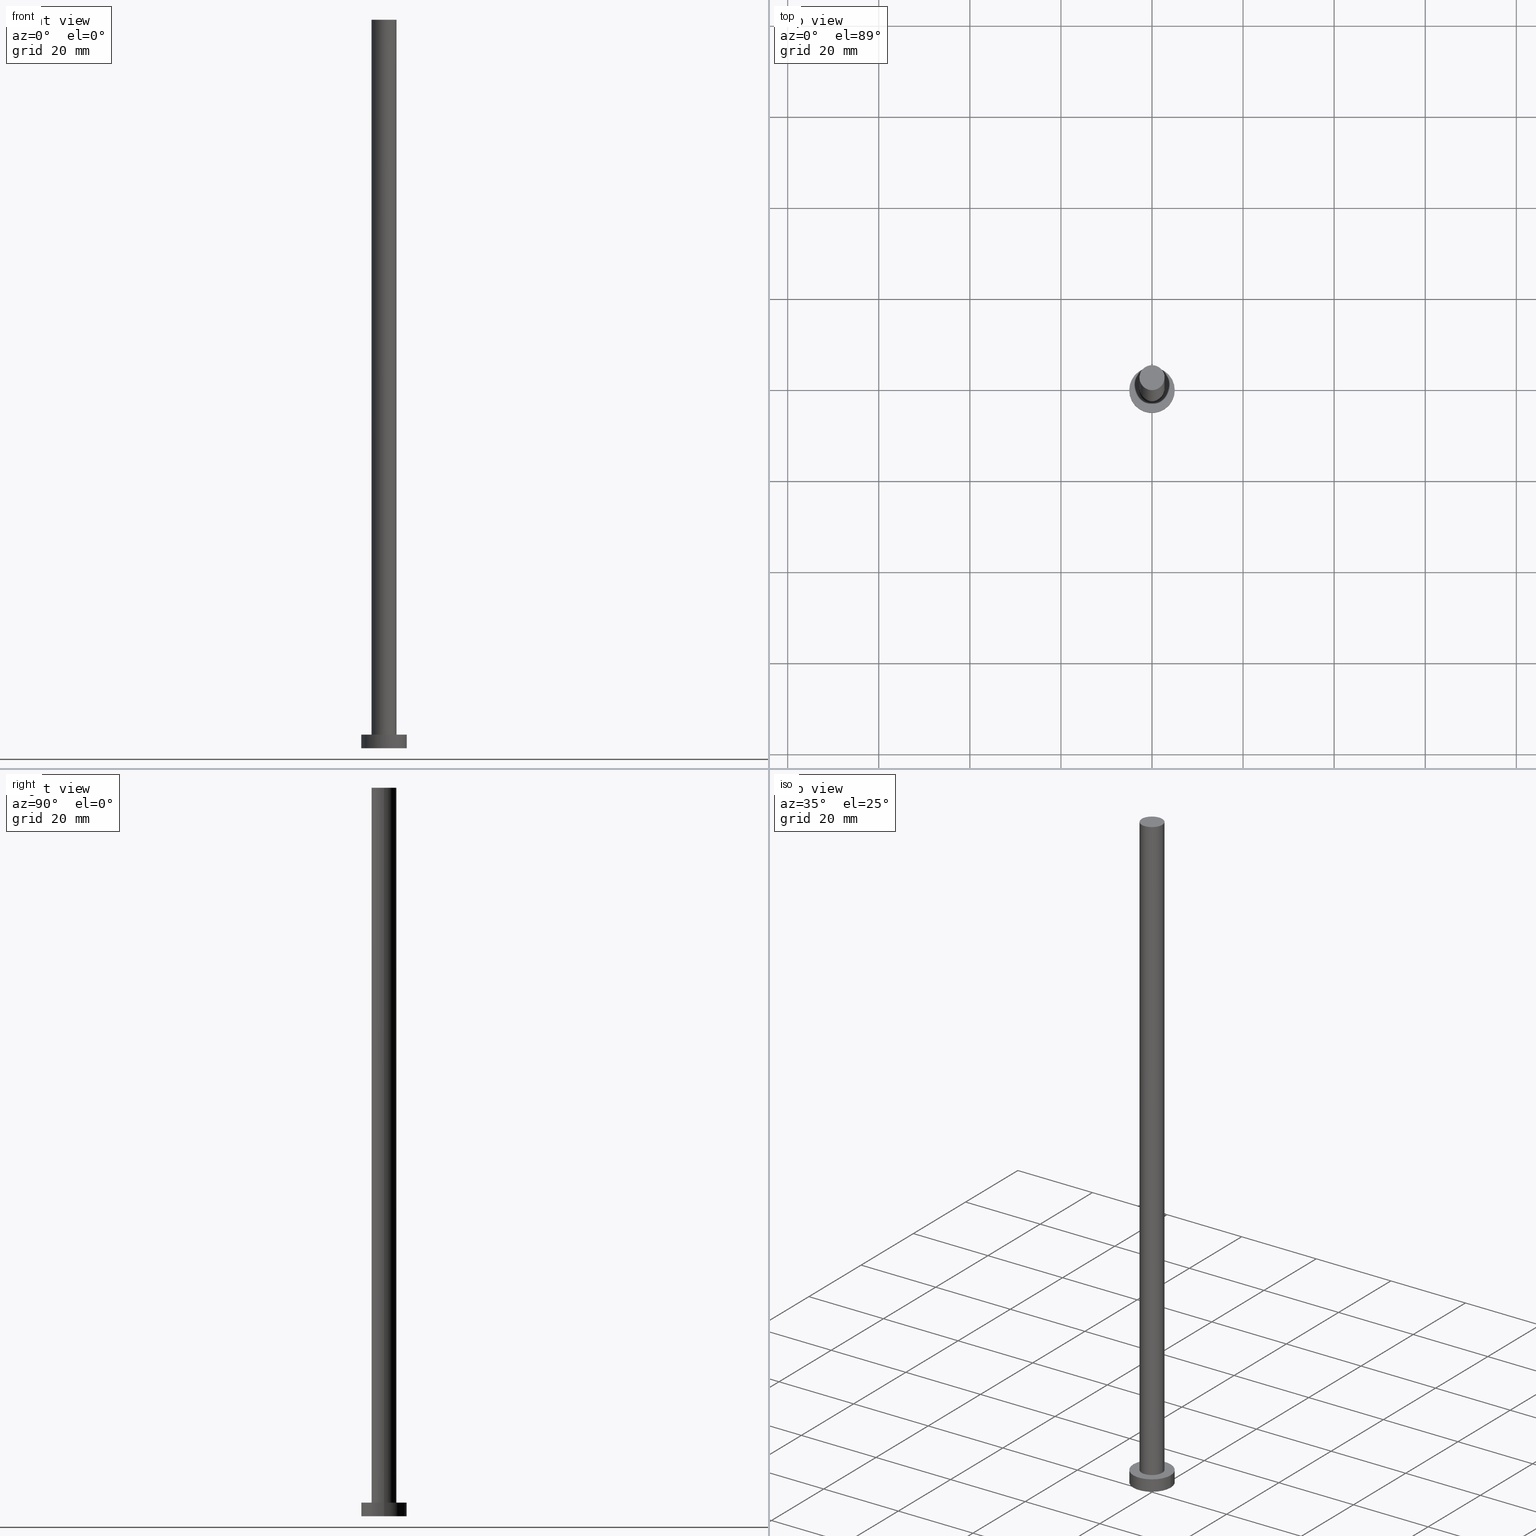
[diagram: canonical four-view strip — front | top / right | iso, engineering-drawing reading convention]
A machine part, canonical four-view strip (front | top / right | iso — engineering-drawing reading convention). The complete STEP part file that produces these views, byte-faithful:
ISO-10303-21;
HEADER;
FILE_DESCRIPTION (( 'STEP AP203' ),
    '1' );
FILE_NAME ('23bf.STEP',
    '2023-02-12T12:25:35',
    ( '' ),
    ( '' ),
    'SwSTEP 2.0',
    'SolidWorks 2019',
    '' );
FILE_SCHEMA (( 'CONFIG_CONTROL_DESIGN' ));
ENDSEC;

DATA;
#1 = DIRECTION ( 'NONE',  ( -0.000000000000000000, -0.000000000000000000, -1.000000000000000000 ) ) ;
#2 = PERSON_AND_ORGANIZATION_ROLE ( 'design_owner' ) ;
#3 = LINE ( 'NONE', #157, #38 ) ;
#4 = FACE_OUTER_BOUND ( 'NONE', #211, .T. ) ;
#5 = ADVANCED_FACE ( 'NONE', ( #223 ), #44, .T. ) ;
#6 = CYLINDRICAL_SURFACE ( 'NONE', #243, 2.750000000000000000 ) ;
#7 = APPROVAL_ROLE ( '' ) ;
#8 = EDGE_LOOP ( 'NONE', ( #51, #191, #128, #245 ) ) ;
#9 = ORIENTED_EDGE ( 'NONE', *, *, #97, .T. ) ;
#10 = ADVANCED_FACE ( 'NONE', ( #78 ), #82, .F. ) ;
#11 = PERSON_AND_ORGANIZATION_ROLE ( 'design_supplier' ) ;
#12 = VECTOR ( 'NONE', #108, 1000.000000000000000 ) ;
#13 = COORDINATED_UNIVERSAL_TIME_OFFSET ( 1, 0, .AHEAD. ) ;
#14 = APPROVAL_ROLE ( '' ) ;
#15 = DIRECTION ( 'NONE',  ( 1.000000000000000000, 0.000000000000000000, 0.000000000000000000 ) ) ;
#16 = ORIENTED_EDGE ( 'NONE', *, *, #246, .F. ) ;
#17 = VECTOR ( 'NONE', #139, 1000.000000000000000 ) ;
#18 = DATE_AND_TIME ( #140, #23 ) ;
#19 = DIRECTION ( 'NONE',  ( 1.000000000000000000, 0.000000000000000000, 0.000000000000000000 ) ) ;
#20 = CARTESIAN_POINT ( 'NONE',  ( 0.000000000000000000, 0.000000000000000000, 0.000000000000000000 ) ) ;
#21 = EDGE_LOOP ( 'NONE', ( #9, #52 ) ) ;
#22 = CC_DESIGN_APPROVAL ( #110, ( #210 ) ) ;
#23 = LOCAL_TIME ( 13, 25, 35.00000000000000000, #60 ) ;
#24 = FACE_OUTER_BOUND ( 'NONE', #27, .T. ) ;
#25 = CARTESIAN_POINT ( 'NONE',  ( 0.000000000000000000, 0.000000000000000000, 160.0000000000000000 ) ) ;
#26 = AXIS2_PLACEMENT_3D ( 'NONE', #120, #98, #234 ) ;
#27 = EDGE_LOOP ( 'NONE', ( #198, #122, #99, #203 ) ) ;
#28 = VERTEX_POINT ( 'NONE', #65 ) ;
#29 = ADVANCED_FACE ( 'NONE', ( #222 ), #119, .T. ) ;
#30 = ORIENTED_EDGE ( 'NONE', *, *, #217, .F. ) ;
#31 = ORIENTED_EDGE ( 'NONE', *, *, #215, .F. ) ;
#32 = CC_DESIGN_PERSON_AND_ORGANIZATION_ASSIGNMENT ( #228, #11, ( #69 ) ) ;
#33 = DATE_AND_TIME ( #247, #135 ) ;
#34 = COORDINATED_UNIVERSAL_TIME_OFFSET ( 1, 0, .AHEAD. ) ;
#35 = DIRECTION ( 'NONE',  ( -0.000000000000000000, -0.000000000000000000, -1.000000000000000000 ) ) ;
#36 = DIRECTION ( 'NONE',  ( 0.000000000000000000, 0.000000000000000000, 1.000000000000000000 ) ) ;
#37 = DIRECTION ( 'NONE',  ( 0.000000000000000000, 0.000000000000000000, 1.000000000000000000 ) ) ;
#38 = VECTOR ( 'NONE', #138, 1000.000000000000000 ) ;
#39 = EDGE_CURVE ( 'NONE', #114, #58, #3, .T. ) ;
#40 = DIRECTION ( 'NONE',  ( 1.000000000000000000, 0.000000000000000000, 0.000000000000000000 ) ) ;
#41 = DIRECTION ( 'NONE',  ( 1.000000000000000000, 0.000000000000000000, -0.000000000000000000 ) ) ;
#42 = CARTESIAN_POINT ( 'NONE',  ( -5.000000000000000000, 0.000000000000000000, 0.000000000000000000 ) ) ;
#43 = AXIS2_PLACEMENT_3D ( 'NONE', #20, #104, #40 ) ;
#44 = CYLINDRICAL_SURFACE ( 'NONE', #154, 5.000000000000000000 ) ;
#45 = ADVANCED_BREP_SHAPE_REPRESENTATION ( '23bf', ( #204, #43 ), #111 ) ;
#46 = DIRECTION ( 'NONE',  ( 1.000000000000000000, 0.000000000000000000, 0.000000000000000000 ) ) ;
#47 = LINE ( 'NONE', #206, #12 ) ;
#48 = CC_DESIGN_APPROVAL ( #73, ( #69 ) ) ;
#49 = CIRCLE ( 'NONE', #195, 2.750000000000000000 ) ;
#50 = ADVANCED_FACE ( 'NONE', ( #160, #229 ), #86, .T. ) ;
#51 = ORIENTED_EDGE ( 'NONE', *, *, #39, .F. ) ;
#52 = ORIENTED_EDGE ( 'NONE', *, *, #189, .T. ) ;
#53 = PERSON_AND_ORGANIZATION ( #137, #186 ) ;
#54 = EDGE_CURVE ( 'NONE', #169, #153, #184, .T. ) ;
#55 = ORIENTED_EDGE ( 'NONE', *, *, #189, .F. ) ;
#56 = PERSON_AND_ORGANIZATION_ROLE ( 'creator' ) ;
#57 = DIRECTION ( 'NONE',  ( 1.000000000000000000, 0.000000000000000000, -0.000000000000000000 ) ) ;
#58 = VERTEX_POINT ( 'NONE', #201 ) ;
#59 = EDGE_CURVE ( 'NONE', #193, #169, #175, .T. ) ;
#60 = COORDINATED_UNIVERSAL_TIME_OFFSET ( 1, 0, .AHEAD. ) ;
#61 = DIRECTION ( 'NONE',  ( 1.000000000000000000, 0.000000000000000000, 0.000000000000000000 ) ) ;
#62 = AXIS2_PLACEMENT_3D ( 'NONE', #136, #35, #118 ) ;
#63 = APPROVAL_STATUS ( 'not_yet_approved' ) ;
#64 = PRODUCT_RELATED_PRODUCT_CATEGORY ( 'detail', '', ( #72 ) ) ;
#65 = CARTESIAN_POINT ( 'NONE',  ( -5.000000000000000000, 0.000000000000000000, 3.000000000000000000 ) ) ;
#66 = DIRECTION ( 'NONE',  ( 1.000000000000000000, 0.000000000000000000, 0.000000000000000000 ) ) ;
#67 = CARTESIAN_POINT ( 'NONE',  ( 0.000000000000000000, 0.000000000000000000, 3.000000000000000000 ) ) ;
#68 = DIRECTION ( 'NONE',  ( 1.000000000000000000, 0.000000000000000000, 0.000000000000000000 ) ) ;
#69 = PRODUCT_DEFINITION_FORMATION_WITH_SPECIFIED_SOURCE ( 'LIBOVOLN�', '', #72, .NOT_KNOWN. ) ;
#70 = ADVANCED_FACE ( 'NONE', ( #176 ), #251, .T. ) ;
#71 = DATE_AND_TIME ( #152, #224 ) ;
#72 = PRODUCT ( '23bf', '23bf', '', ( #143 ) ) ;
#73 = APPROVAL ( #115, 'NEUR�EN�' ) ;
#74 = DATE_TIME_ROLE ( 'classification_date' ) ;
#75 = CIRCLE ( 'NONE', #166, 5.000000000000000000 ) ;
#76 = APPROVAL_DATE_TIME ( #174, #73 ) ;
#77 = CLOSED_SHELL ( 'NONE', ( #197, #70, #5, #50, #10, #170, #29 ) ) ;
#78 = FACE_OUTER_BOUND ( 'NONE', #141, .T. ) ;
#79 = PERSON_AND_ORGANIZATION ( #137, #186 ) ;
#80 = CARTESIAN_POINT ( 'NONE',  ( 0.000000000000000000, 0.000000000000000000, 160.0000000000000000 ) ) ;
#81 = PERSON_AND_ORGANIZATION ( #137, #186 ) ;
#82 = PLANE ( 'NONE',  #151 ) ;
#83 = CARTESIAN_POINT ( 'NONE',  ( 0.000000000000000000, 0.000000000000000000, 160.0000000000000000 ) ) ;
#84 = CIRCLE ( 'NONE', #212, 5.000000000000000000 ) ;
#85 = APPLICATION_PROTOCOL_DEFINITION ( 'international standard', 'config_control_design', 1994, #253 ) ;
#86 = PLANE ( 'NONE',  #26 ) ;
#87 = CARTESIAN_POINT ( 'NONE',  ( 0.000000000000000000, 0.000000000000000000, 0.000000000000000000 ) ) ;
#88 = CARTESIAN_POINT ( 'NONE',  ( 0.000000000000000000, 0.000000000000000000, 160.0000000000000000 ) ) ;
#89 = CIRCLE ( 'NONE', #200, 2.750000000000000000 ) ;
#90 = EDGE_LOOP ( 'NONE', ( #167, #92 ) ) ;
#91 = ORIENTED_EDGE ( 'NONE', *, *, #39, .T. ) ;
#92 = ORIENTED_EDGE ( 'NONE', *, *, #146, .T. ) ;
#93 = PERSON_AND_ORGANIZATION ( #137, #186 ) ;
#94 = LOCAL_TIME ( 13, 25, 35.00000000000000000, #34 ) ;
#95 = AXIS2_PLACEMENT_3D ( 'NONE', #254, #196, #15 ) ;
#96 = CALENDAR_DATE ( 2023, 12, 2 ) ;
#97 = EDGE_CURVE ( 'NONE', #28, #114, #172, .T. ) ;
#98 = DIRECTION ( 'NONE',  ( 0.000000000000000000, 0.000000000000000000, 1.000000000000000000 ) ) ;
#99 = ORIENTED_EDGE ( 'NONE', *, *, #246, .T. ) ;
#100 = CARTESIAN_POINT ( 'NONE',  ( 0.000000000000000000, 0.000000000000000000, 3.000000000000000000 ) ) ;
#101 = CC_DESIGN_PERSON_AND_ORGANIZATION_ASSIGNMENT ( #156, #56, ( #69 ) ) ;
#102 = APPROVAL_DATE_TIME ( #18, #232 ) ;
#103 = DIRECTION ( 'NONE',  ( -1.000000000000000000, 0.000000000000000000, 0.000000000000000000 ) ) ;
#104 = DIRECTION ( 'NONE',  ( 0.000000000000000000, 0.000000000000000000, 1.000000000000000000 ) ) ;
#105 = CC_DESIGN_SECURITY_CLASSIFICATION ( #210, ( #69 ) ) ;
#106 = CARTESIAN_POINT ( 'NONE',  ( 0.000000000000000000, 0.000000000000000000, 3.000000000000000000 ) ) ;
#107 = CYLINDRICAL_SURFACE ( 'NONE', #148, 2.750000000000000000 ) ;
#108 = DIRECTION ( 'NONE',  ( -0.000000000000000000, -0.000000000000000000, -1.000000000000000000 ) ) ;
#109 = VECTOR ( 'NONE', #144, 1000.000000000000000 ) ;
#110 = APPROVAL ( #188, 'NEUR�EN�' ) ;
#111 =( GEOMETRIC_REPRESENTATION_CONTEXT ( 3 ) GLOBAL_UNCERTAINTY_ASSIGNED_CONTEXT ( ( #244 ) ) GLOBAL_UNIT_ASSIGNED_CONTEXT ( ( #142, #161, #235 ) ) REPRESENTATION_CONTEXT ( 'NONE', 'WORKASPACE' ) );
#112 = ORIENTED_EDGE ( 'NONE', *, *, #54, .F. ) ;
#113 = APPROVAL_DATE_TIME ( #71, #110 ) ;
#114 = VERTEX_POINT ( 'NONE', #238 ) ;
#115 = APPROVAL_STATUS ( 'not_yet_approved' ) ;
#116 = EDGE_CURVE ( 'NONE', #193, #132, #236, .T. ) ;
#117 = PERSON_AND_ORGANIZATION ( #137, #186 ) ;
#118 = DIRECTION ( 'NONE',  ( -1.000000000000000000, 0.000000000000000000, 0.000000000000000000 ) ) ;
#119 = PLANE ( 'NONE',  #252 ) ;
#120 = CARTESIAN_POINT ( 'NONE',  ( 0.000000000000000000, 0.000000000000000000, 3.000000000000000000 ) ) ;
#121 = DIRECTION ( 'NONE',  ( 0.000000000000000000, 0.000000000000000000, 1.000000000000000000 ) ) ;
#122 = ORIENTED_EDGE ( 'NONE', *, *, #123, .T. ) ;
#123 = EDGE_CURVE ( 'NONE', #132, #153, #47, .T. ) ;
#124 = CARTESIAN_POINT ( 'NONE',  ( 2.750000000000000000, 3.367778697655221012E-16, 3.000000000000000000 ) ) ;
#125 = DIRECTION ( 'NONE',  ( 1.000000000000000000, 0.000000000000000000, 0.000000000000000000 ) ) ;
#126 = LOCAL_TIME ( 13, 25, 35.00000000000000000, #13 ) ;
#127 = AXIS2_PLACEMENT_3D ( 'NONE', #25, #226, #125 ) ;
#128 = ORIENTED_EDGE ( 'NONE', *, *, #215, .T. ) ;
#129 = COORDINATED_UNIVERSAL_TIME_OFFSET ( 1, 0, .AHEAD. ) ;
#130 = ORIENTED_EDGE ( 'NONE', *, *, #123, .F. ) ;
#131 = SHAPE_DEFINITION_REPRESENTATION ( #227, #45 ) ;
#132 = VERTEX_POINT ( 'NONE', #242 ) ;
#133 = DATE_TIME_ROLE ( 'creation_date' ) ;
#134 = SECURITY_CLASSIFICATION_LEVEL ( 'unclassified' ) ;
#135 = LOCAL_TIME ( 13, 25, 35.00000000000000000, #214 ) ;
#136 = CARTESIAN_POINT ( 'NONE',  ( 0.000000000000000000, 0.000000000000000000, 3.000000000000000000 ) ) ;
#137 = PERSON ( 'NEUR�EN�', 'NEUR�EN�', 'NEUR�EN�', ('NEUR�EN�'), ('NEUR�EN�'), ('NEUR�EN�') ) ;
#138 = DIRECTION ( 'NONE',  ( -0.000000000000000000, -0.000000000000000000, -1.000000000000000000 ) ) ;
#139 = DIRECTION ( 'NONE',  ( -0.000000000000000000, -0.000000000000000000, -1.000000000000000000 ) ) ;
#140 = CALENDAR_DATE ( 2023, 12, 2 ) ;
#141 = EDGE_LOOP ( 'NONE', ( #178, #30 ) ) ;
#142 =( LENGTH_UNIT ( ) NAMED_UNIT ( * ) SI_UNIT ( .MILLI., .METRE. ) );
#143 = MECHANICAL_CONTEXT ( 'NONE', #181, 'mechanical' ) ;
#144 = DIRECTION ( 'NONE',  ( -0.000000000000000000, -0.000000000000000000, -1.000000000000000000 ) ) ;
#145 = AXIS2_PLACEMENT_3D ( 'NONE', #67, #225, #46 ) ;
#146 = EDGE_CURVE ( 'NONE', #132, #193, #49, .T. ) ;
#147 = CARTESIAN_POINT ( 'NONE',  ( 0.000000000000000000, 0.000000000000000000, 160.0000000000000000 ) ) ;
#148 = AXIS2_PLACEMENT_3D ( 'NONE', #83, #199, #103 ) ;
#149 = DIRECTION ( 'NONE',  ( 0.000000000000000000, 0.000000000000000000, 1.000000000000000000 ) ) ;
#150 = APPROVAL_PERSON_ORGANIZATION ( #117, #73, #14 ) ;
#151 = AXIS2_PLACEMENT_3D ( 'NONE', #216, #255, #41 ) ;
#152 = CALENDAR_DATE ( 2023, 12, 2 ) ;
#153 = VERTEX_POINT ( 'NONE', #124 ) ;
#154 = AXIS2_PLACEMENT_3D ( 'NONE', #106, #1, #218 ) ;
#155 = PRODUCT_DEFINITION ( 'NEZN�M�', '', #69, #230 ) ;
#156 = PERSON_AND_ORGANIZATION ( #137, #186 ) ;
#157 = CARTESIAN_POINT ( 'NONE',  ( 5.000000000000000000, 6.123233995736766282E-16, 3.000000000000000000 ) ) ;
#158 = DIRECTION ( 'NONE',  ( 0.000000000000000000, 0.000000000000000000, 1.000000000000000000 ) ) ;
#159 = APPROVAL_ROLE ( '' ) ;
#160 = FACE_BOUND ( 'NONE', #190, .T. ) ;
#161 =( NAMED_UNIT ( * ) PLANE_ANGLE_UNIT ( ) SI_UNIT ( $, .RADIAN. ) );
#162 = CARTESIAN_POINT ( 'NONE',  ( -2.750000000000000000, 0.000000000000000000, 160.0000000000000000 ) ) ;
#163 = LINE ( 'NONE', #239, #17 ) ;
#164 = CARTESIAN_POINT ( 'NONE',  ( 0.000000000000000000, 0.000000000000000000, 3.000000000000000000 ) ) ;
#165 = DIRECTION ( 'NONE',  ( -0.000000000000000000, -0.000000000000000000, -1.000000000000000000 ) ) ;
#166 = AXIS2_PLACEMENT_3D ( 'NONE', #219, #37, #61 ) ;
#167 = ORIENTED_EDGE ( 'NONE', *, *, #116, .T. ) ;
#168 = EDGE_CURVE ( 'NONE', #209, #58, #84, .T. ) ;
#169 = VERTEX_POINT ( 'NONE', #182 ) ;
#170 = ADVANCED_FACE ( 'NONE', ( #4 ), #6, .T. ) ;
#171 = PERSON_AND_ORGANIZATION_ROLE ( 'classification_officer' ) ;
#172 = CIRCLE ( 'NONE', #95, 5.000000000000000000 ) ;
#173 = CC_DESIGN_PERSON_AND_ORGANIZATION_ASSIGNMENT ( #93, #171, ( #210 ) ) ;
#174 = DATE_AND_TIME ( #96, #126 ) ;
#175 = LINE ( 'NONE', #162, #109 ) ;
#176 = FACE_OUTER_BOUND ( 'NONE', #179, .T. ) ;
#177 = CIRCLE ( 'NONE', #145, 5.000000000000000000 ) ;
#178 = ORIENTED_EDGE ( 'NONE', *, *, #168, .F. ) ;
#179 = EDGE_LOOP ( 'NONE', ( #55, #91, #187, #31 ) ) ;
#180 = CC_DESIGN_PERSON_AND_ORGANIZATION_ASSIGNMENT ( #81, #237, ( #155 ) ) ;
#181 = APPLICATION_CONTEXT ( 'configuration controlled 3d designs of mechanical parts and assemblies' ) ;
#182 = CARTESIAN_POINT ( 'NONE',  ( -2.750000000000000000, 0.000000000000000000, 3.000000000000000000 ) ) ;
#183 = DIRECTION ( 'NONE',  ( 0.000000000000000000, 0.000000000000000000, 1.000000000000000000 ) ) ;
#184 = CIRCLE ( 'NONE', #220, 2.750000000000000000 ) ;
#185 = DIRECTION ( 'NONE',  ( 1.000000000000000000, 0.000000000000000000, 0.000000000000000000 ) ) ;
#186 = ORGANIZATION ( 'NEUR�EN�', 'NEUR�EN�', '' ) ;
#187 = ORIENTED_EDGE ( 'NONE', *, *, #217, .T. ) ;
#188 = APPROVAL_STATUS ( 'not_yet_approved' ) ;
#189 = EDGE_CURVE ( 'NONE', #114, #28, #177, .T. ) ;
#190 = EDGE_LOOP ( 'NONE', ( #112, #16 ) ) ;
#191 = ORIENTED_EDGE ( 'NONE', *, *, #97, .F. ) ;
#192 = CC_DESIGN_DATE_AND_TIME_ASSIGNMENT ( #33, #74, ( #210 ) ) ;
#193 = VERTEX_POINT ( 'NONE', #205 ) ;
#194 = CALENDAR_DATE ( 2023, 12, 2 ) ;
#195 = AXIS2_PLACEMENT_3D ( 'NONE', #147, #149, #68 ) ;
#196 = DIRECTION ( 'NONE',  ( 0.000000000000000000, 0.000000000000000000, 1.000000000000000000 ) ) ;
#197 = ADVANCED_FACE ( 'NONE', ( #24 ), #107, .T. ) ;
#198 = ORIENTED_EDGE ( 'NONE', *, *, #146, .F. ) ;
#199 = DIRECTION ( 'NONE',  ( -0.000000000000000000, -0.000000000000000000, -1.000000000000000000 ) ) ;
#200 = AXIS2_PLACEMENT_3D ( 'NONE', #100, #121, #66 ) ;
#201 = CARTESIAN_POINT ( 'NONE',  ( 5.000000000000000000, 6.123233995736766282E-16, 0.000000000000000000 ) ) ;
#202 = PERSON_AND_ORGANIZATION ( #137, #186 ) ;
#203 = ORIENTED_EDGE ( 'NONE', *, *, #59, .F. ) ;
#204 = MANIFOLD_SOLID_BREP ( 'P�idat vysunut�m3', #77 ) ;
#205 = CARTESIAN_POINT ( 'NONE',  ( -2.750000000000000000, 0.000000000000000000, 160.0000000000000000 ) ) ;
#206 = CARTESIAN_POINT ( 'NONE',  ( 2.750000000000000000, 3.367778697655221012E-16, 160.0000000000000000 ) ) ;
#207 = APPROVAL_PERSON_ORGANIZATION ( #53, #110, #7 ) ;
#208 = ORIENTED_EDGE ( 'NONE', *, *, #54, .T. ) ;
#209 = VERTEX_POINT ( 'NONE', #42 ) ;
#210 = SECURITY_CLASSIFICATION ( '', '', #134 ) ;
#211 = EDGE_LOOP ( 'NONE', ( #130, #213, #231, #208 ) ) ;
#212 = AXIS2_PLACEMENT_3D ( 'NONE', #87, #183, #185 ) ;
#213 = ORIENTED_EDGE ( 'NONE', *, *, #116, .F. ) ;
#214 = COORDINATED_UNIVERSAL_TIME_OFFSET ( 1, 0, .AHEAD. ) ;
#215 = EDGE_CURVE ( 'NONE', #28, #209, #163, .T. ) ;
#216 = CARTESIAN_POINT ( 'NONE',  ( 0.000000000000000000, 0.000000000000000000, 0.000000000000000000 ) ) ;
#217 = EDGE_CURVE ( 'NONE', #58, #209, #75, .T. ) ;
#218 = DIRECTION ( 'NONE',  ( -1.000000000000000000, 0.000000000000000000, 0.000000000000000000 ) ) ;
#219 = CARTESIAN_POINT ( 'NONE',  ( 0.000000000000000000, 0.000000000000000000, 0.000000000000000000 ) ) ;
#220 = AXIS2_PLACEMENT_3D ( 'NONE', #164, #158, #19 ) ;
#221 = CC_DESIGN_DATE_AND_TIME_ASSIGNMENT ( #248, #133, ( #155 ) ) ;
#222 = FACE_OUTER_BOUND ( 'NONE', #90, .T. ) ;
#223 = FACE_OUTER_BOUND ( 'NONE', #8, .T. ) ;
#224 = LOCAL_TIME ( 13, 25, 35.00000000000000000, #129 ) ;
#225 = DIRECTION ( 'NONE',  ( 0.000000000000000000, 0.000000000000000000, 1.000000000000000000 ) ) ;
#226 = DIRECTION ( 'NONE',  ( 0.000000000000000000, 0.000000000000000000, 1.000000000000000000 ) ) ;
#227 = PRODUCT_DEFINITION_SHAPE ( 'NONE', 'NONE',  #155 ) ;
#228 = PERSON_AND_ORGANIZATION ( #137, #186 ) ;
#229 = FACE_OUTER_BOUND ( 'NONE', #21, .T. ) ;
#230 = DESIGN_CONTEXT ( 'detailed design', #253, 'design' ) ;
#231 = ORIENTED_EDGE ( 'NONE', *, *, #59, .T. ) ;
#232 = APPROVAL ( #63, 'NEUR�EN�' ) ;
#233 = APPLICATION_PROTOCOL_DEFINITION ( 'international standard', 'config_control_design', 1994, #181 ) ;
#234 = DIRECTION ( 'NONE',  ( 1.000000000000000000, 0.000000000000000000, -0.000000000000000000 ) ) ;
#235 =( NAMED_UNIT ( * ) SI_UNIT ( $, .STERADIAN. ) SOLID_ANGLE_UNIT ( ) );
#236 = CIRCLE ( 'NONE', #127, 2.750000000000000000 ) ;
#237 = PERSON_AND_ORGANIZATION_ROLE ( 'creator' ) ;
#238 = CARTESIAN_POINT ( 'NONE',  ( 5.000000000000000000, 6.123233995736766282E-16, 3.000000000000000000 ) ) ;
#239 = CARTESIAN_POINT ( 'NONE',  ( -5.000000000000000000, 0.000000000000000000, 3.000000000000000000 ) ) ;
#240 = CC_DESIGN_PERSON_AND_ORGANIZATION_ASSIGNMENT ( #202, #2, ( #72 ) ) ;
#241 = DIRECTION ( 'NONE',  ( -1.000000000000000000, 0.000000000000000000, 0.000000000000000000 ) ) ;
#242 = CARTESIAN_POINT ( 'NONE',  ( 2.750000000000000000, 3.367778697655221012E-16, 160.0000000000000000 ) ) ;
#243 = AXIS2_PLACEMENT_3D ( 'NONE', #88, #165, #241 ) ;
#244 = UNCERTAINTY_MEASURE_WITH_UNIT (LENGTH_MEASURE( 1.000000000000000082E-05 ), #142, 'distance_accuracy_value', 'NONE');
#245 = ORIENTED_EDGE ( 'NONE', *, *, #168, .T. ) ;
#246 = EDGE_CURVE ( 'NONE', #153, #169, #89, .T. ) ;
#247 = CALENDAR_DATE ( 2023, 12, 2 ) ;
#248 = DATE_AND_TIME ( #194, #94 ) ;
#249 = APPROVAL_PERSON_ORGANIZATION ( #79, #232, #159 ) ;
#250 = CC_DESIGN_APPROVAL ( #232, ( #155 ) ) ;
#251 = CYLINDRICAL_SURFACE ( 'NONE', #62, 5.000000000000000000 ) ;
#252 = AXIS2_PLACEMENT_3D ( 'NONE', #80, #36, #57 ) ;
#253 = APPLICATION_CONTEXT ( 'configuration controlled 3d designs of mechanical parts and assemblies' ) ;
#254 = CARTESIAN_POINT ( 'NONE',  ( 0.000000000000000000, 0.000000000000000000, 3.000000000000000000 ) ) ;
#255 = DIRECTION ( 'NONE',  ( 0.000000000000000000, 0.000000000000000000, 1.000000000000000000 ) ) ;
ENDSEC;
END-ISO-10303-21;
